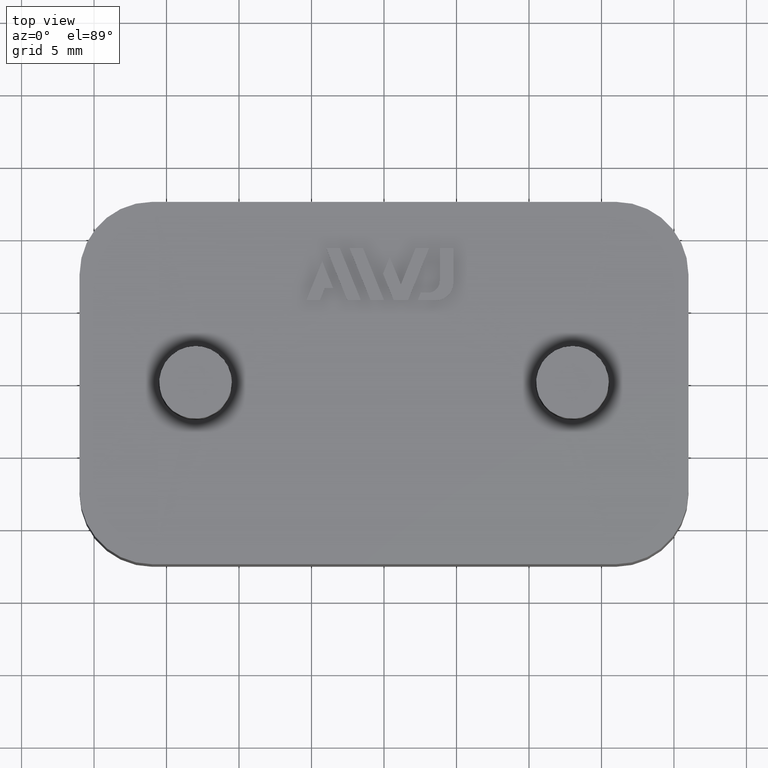
[diagram: clean part render]
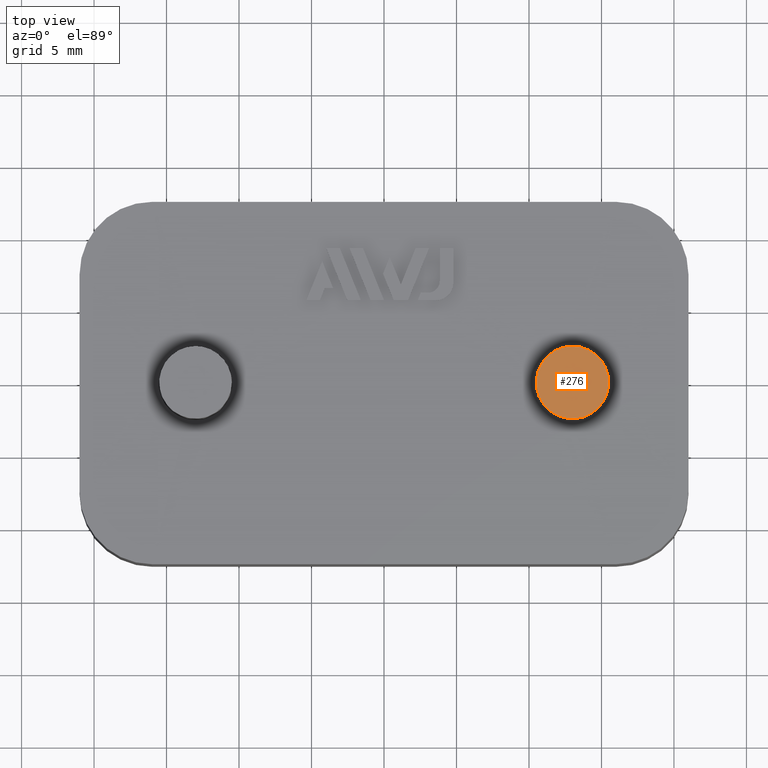
[diagram: same view with one face highlighted and labeled with its STEP entity id]
A machine part, top view. The second image highlights one B-rep face of the part: STEP entity #276.
In plain terms, the highlighted planar face has unit normal (0, -0, -1).
Its self-contained STEP definition (entity closure, byte-faithful):
#276 = ADVANCED_FACE( '', ( #752 ), #753, .F. );
#752 = FACE_OUTER_BOUND( '', #1262, .T. );
#753 = PLANE( '', #1263 );
#1262 = EDGE_LOOP( '', ( #2974 ) );
#1263 = AXIS2_PLACEMENT_3D( '', #2975, #2976, #2977 );
#2974 = ORIENTED_EDGE( '', *, *, #3762, .F. );
#2975 = CARTESIAN_POINT( '', ( 13.0000000000000, 2.48157614249345E-015, 12.5000000000000 ) );
#2976 = DIRECTION( '', ( 0.000000000000000, -6.12303176911189E-017, -1.00000000000000 ) );
#2977 = DIRECTION( '', ( 1.00000000000000, 6.12303176911190E-017, -3.74915180455535E-033 ) );
#3762 = EDGE_CURVE( '', #4724, #4724, #4725, .T. );
#4724 = VERTEX_POINT( '', #6237 );
#4725 = CIRCLE( '', #6238, 2.50000000000000 );
#6237 = CARTESIAN_POINT( '', ( 15.5000000000000, 2.63465193672124E-015, 12.5000000000000 ) );
#6238 = AXIS2_PLACEMENT_3D( '', #6932, #6933, #6934 );
#6932 = CARTESIAN_POINT( '', ( 13.0000000000000, 2.48157614249345E-015, 12.5000000000000 ) );
#6933 = DIRECTION( '', ( -4.37905770101506E-049, -6.12303176911189E-017, -1.00000000000000 ) );
#6934 = DIRECTION( '', ( 1.00000000000000, 6.12303176911188E-017, -3.74915180455534E-033 ) );